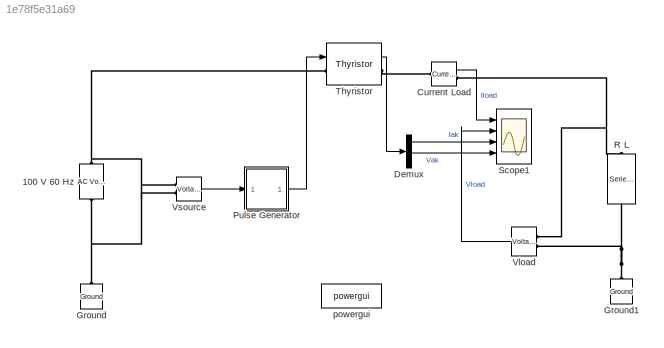
MODEL slx_1e78f5e31a69
KIND model
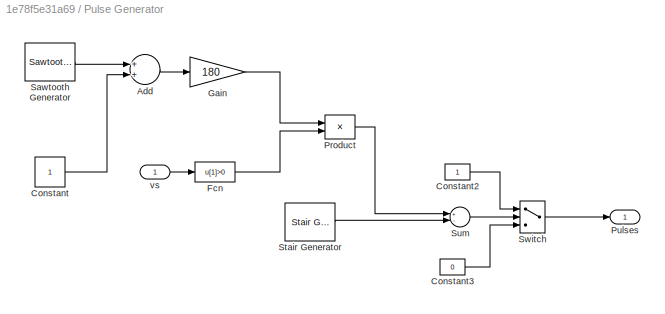
BLOCK [SubSystem]  Pulse Generator
  Ports = [1, 1]
  RequestExecContextInheritance = off
  ShowPortLabels = none
BLOCK [Sum]  Pulse Generator/Add
  InputSameDT = off
  OutDataTypeStr = Inherit: Inherit via internal rule
  Ports = [2, 1]
  SaturateOnIntegerOverflow = off
BLOCK [Constant]  Pulse Generator/Constant
BLOCK [Constant]  Pulse Generator/Constant2
BLOCK [Constant]  Pulse Generator/Constant3
  Value = 0
BLOCK [Fcn]  Pulse Generator/Fcn
  Expr = u[1]>0
BLOCK [Gain]  Pulse Generator/Gain
  Gain = 180
  OutDataTypeStr = Inherit: Inherit via internal rule
  ParamDataTypeStr = Inherit: Inherit via internal rule
  SaturateOnIntegerOverflow = off
BLOCK [Product]  Pulse Generator/Product
  Ports = [2, 1]
  RndMeth = Floor
BLOCK [Outport]  Pulse Generator/Pulses
  IconDisplay = Port number
BLOCK [Reference]  Pulse Generator/Sawtooth Generator  REF=powerlib_meascontrol/Pulse & Signal
Generators/Sawtooth
Generator
  AttributesFormatString = Freq=%<Freq>\nPhase=%<Phase>
  Freq = 60
  Phase = 360
  Ports = [0, 1]
  SourceBlock = powerlib_meascontrol/Pulse & Signal\nGenerators/Sawtooth\nGenerator
  SourceType = Sawtooth Generator
  Ts = 0
BLOCK [Reference]  Pulse Generator/Stair Generator  REF=powerlib_meascontrol/Pulse & Signal
Generators/Stair
Generator
  Ports = [0, 1]
  SourceBlock = powerlib_meascontrol/Pulse & Signal\nGenerators/Stair\nGenerator
  SourceType = Stair Generator
  Ts = 0
  e = [20   50   80   110  140  ]
  t = [ 0  1/60 2/60 3/60 4/60 ]
BLOCK [Sum]  Pulse Generator/Sum
  Inputs = +-
  Ports = [2, 1]
BLOCK [Switch]  Pulse Generator/Switch
BLOCK [Inport]  Pulse Generator/vs
  IconDisplay = Port number
BLOCK [Reference] 100 V 60 Hz  REF=powerlib/Electrical
Sources/AC Voltage Source
  Amplitude = 100
  AttributesFormatString = \n
  Description = source block
  Frequency = 60
  Measurements = None
  Phase = 0
  Ports = [0, 0, 0, 0, 0, 1, 1]
  SampleTime = 0
  SourceBlock = powerlib/Electrical\nSources/AC Voltage Source
  SourceType = AC Voltage Source
BLOCK [Reference] Current Load  REF=powerlib/Measurements/Current Measurement
  AttributesFormatString = \n
  OutputType = Magnitude
  PSBequivalent = 0
  PhasorSimulation = off
  Ports = [0, 1, 0, 0, 0, 1, 1]
  SourceBlock = powerlib/Measurements/Current Measurement
  SourceType = Current Measurement
  Tag = PoWeRsYsTeMmEaSuReMeNt
BLOCK [Demux] Demux
  Outputs = 2
  Ports = [1, 2]
BLOCK [Reference] Ground  REF=powerlib/Elements/Ground
  AttributesFormatString = \n
  LConnTagsString = a
  Ports = [0, 0, 0, 0, 0, 1]
  SourceBlock = powerlib/Elements/Ground
  SourceType = Ground
BLOCK [Reference] Ground1  REF=powerlib/Elements/Ground
  AttributesFormatString = \n
  LConnTagsString = a
  Ports = [0, 0, 0, 0, 0, 1]
  SourceBlock = powerlib/Elements/Ground
  SourceType = Ground
BLOCK [Reference] R L  REF=powerlib/Elements/Series RLC Branch
  AttributesFormatString = \n
  BranchType = RL
  Capacitance = []
  Inductance = 10e-03
  InitialCurrent = 0
  InitialVoltage = 0
  LConnTagsString = __new0
  Measurements = None
  Ports = [0, 0, 0, 0, 0, 1, 1]
  RConnTagsString = __new0
  Resistance = 1
  SetiL0 = off
  Setx0 = off
  SourceBlock = powerlib/Elements/Series RLC Branch
  SourceType = Series RLC Branch
BLOCK [Scope] Scope1
  Floating = off
  LimitDataPoints = off
  NumInputPorts = 4
  Ports = [4]
  SampleTime = 0
  ShowLegends = off
  TimeRange = 0.1
  YMax = 50~100~40~200
  YMin = -50~-100~0~-200
BLOCK [Reference] Thyristor  REF=powerlib/Power
Electronics/Thyristor
  AttributesFormatString = \n
  Cs = 4e-6
  IC = 0
  Lon = 0
  Measurements = on
  Ports = [1, 1, 0, 0, 0, 1, 1]
  Ron = 1e-3
  Rs = 20
  SourceBlock = powerlib/Power\nElectronics/Thyristor
  SourceType = Thyristor
  Vf = 0.8
BLOCK [Reference] Vload  REF=powerlib/Measurements/Voltage Measurement
  AttributesFormatString = \n
  OutputType = Magnitude
  PSBequivalent = 0
  PhasorSimulation = off
  Ports = [0, 1, 0, 0, 0, 2]
  SourceBlock = powerlib/Measurements/Voltage Measurement
  SourceType = Voltage Measurement
  Tag = PoWeRsYsTeMmEaSuReMeNt
BLOCK [Reference] Vsource  REF=powerlib/Measurements/Voltage Measurement
  AttributesFormatString = \n
  OutputType = Magnitude
  PSBequivalent = 0
  PhasorSimulation = off
  Ports = [0, 1, 0, 0, 0, 2]
  SourceBlock = powerlib/Measurements/Voltage Measurement
  SourceType = Voltage Measurement
  Tag = PoWeRsYsTeMmEaSuReMeNt
BLOCK [Reference] powergui  REF=powerlib/powergui
  DisableRonSwitches = off
  DisableSnubberDevices = off
  DisableVfSwitches = off
  DisplayEquations = off
  DisplayStyle = 1
  EnableUseOfTLC = off
  ErrMax = 1e-4
  Frange = [0:2:500]
  FreqAxis = off
  FunctionMessages = off
  HookPort = off
  Interpol = off
  Iterations = 50
  MaxFrequency = 1000
  Pbase = 100e6
  Ports = []
  ResistiveCurrentMeasurement = off
  RestoreLinks = warning
  RmsSteady = 1
  SPID = off
  SampleTime = 0
  ShowGrid = off
  SolverType = Tustin
  SourceBlock = powerlib/powergui
  SourceType = PSB option menu block
  StartTime = 0.0
  SwTol = 0
  Ts = 0
  UnitsV = kV
  UnitsW = MW
  Xlog = on
  Ylog = off
  ZoomFFT = on
  cycles = 1
  display = off
  echomessages = off
  frequency = 60
  frequencyindice = 60
  frequencyindicesteady = 1
  fundamental = 60
  methode = off
  save = off
  structure = 0
  variable = ZData
  x0status = blocks
LINE  Pulse Generator/Add:1 ->  Pulse Generator/Gain:1
LINE  Pulse Generator/Constant2:1 ->  Pulse Generator/Switch:1
LINE  Pulse Generator/Constant3:1 ->  Pulse Generator/Switch:3
LINE  Pulse Generator/Constant:1 ->  Pulse Generator/Add:2
LINE  Pulse Generator/Fcn:1 ->  Pulse Generator/Product:2
LINE  Pulse Generator/Gain:1 ->  Pulse Generator/Product:1
LINE  Pulse Generator/Product:1 ->  Pulse Generator/Sum:1
LINE  Pulse Generator/Sawtooth Generator:1 ->  Pulse Generator/Add:1
LINE  Pulse Generator/Stair Generator:1 ->  Pulse Generator/Sum:2
LINE  Pulse Generator/Sum:1 ->  Pulse Generator/Switch:2
LINE  Pulse Generator/Switch:1 ->  Pulse Generator/Pulses:1
LINE  Pulse Generator/vs:1 ->  Pulse Generator/Fcn:1
LINE  Pulse Generator:1 -> Thyristor:1
LINE Current Load:1 -> Scope1:1
LINE Demux:1 -> Scope1:3
LINE Demux:2 -> Scope1:4
LINE Thyristor:1 -> Demux:1
LINE Vload:1 -> Scope1:2
LINE Vsource:1 ->  Pulse Generator:1
PNET net1: 100 V 60 Hz:LConn1 -- Ground:LConn1 -- Vsource:LConn2
PNET net2: 100 V 60 Hz:RConn1 -- Thyristor:LConn1 -- Vsource:LConn1
PLINE Current Load:LConn1 -- Thyristor:RConn1
PNET net3: Current Load:RConn1 -- R L:LConn1 -- Vload:LConn1
PNET net4: Ground1:LConn1 -- R L:RConn1 -- Vload:LConn2
note: PNET lines group multi-terminal physical nets as a canonical sorted terminal list (undirected conserving connections); 2-terminal nets keep the pairwise PLINE form
